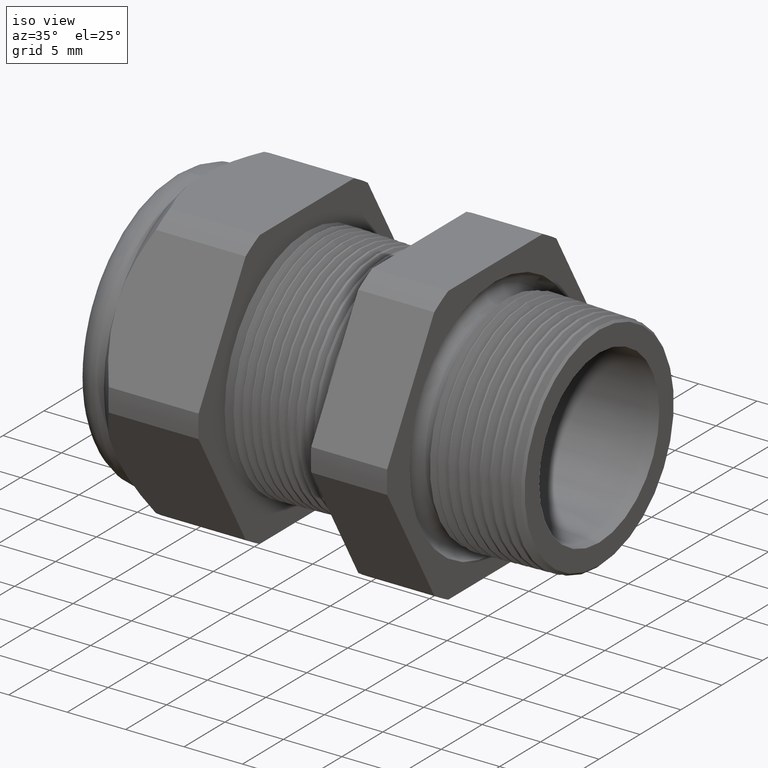
[diagram: clean part render]
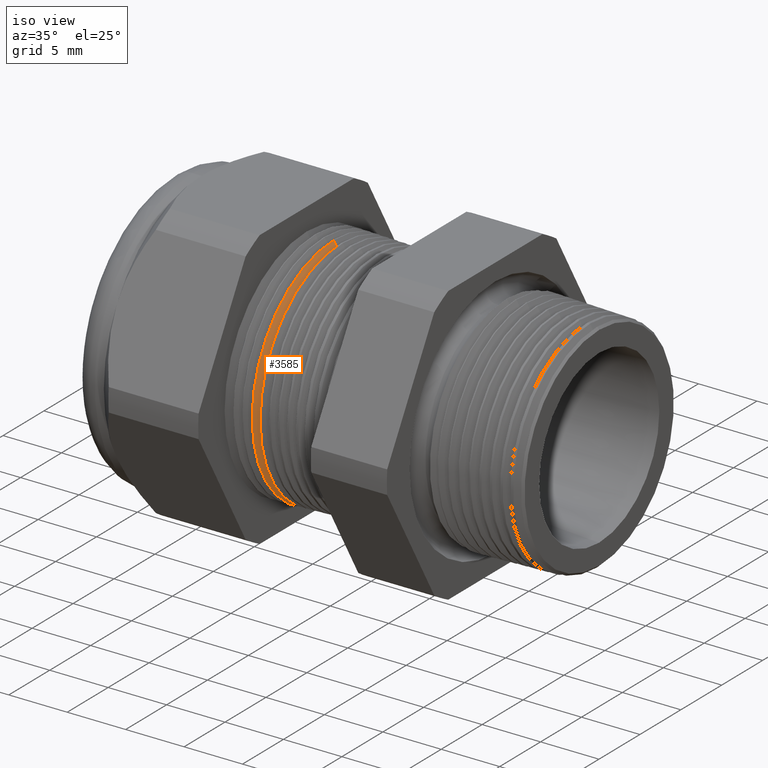
[diagram: same view with one face highlighted and labeled with its STEP entity id]
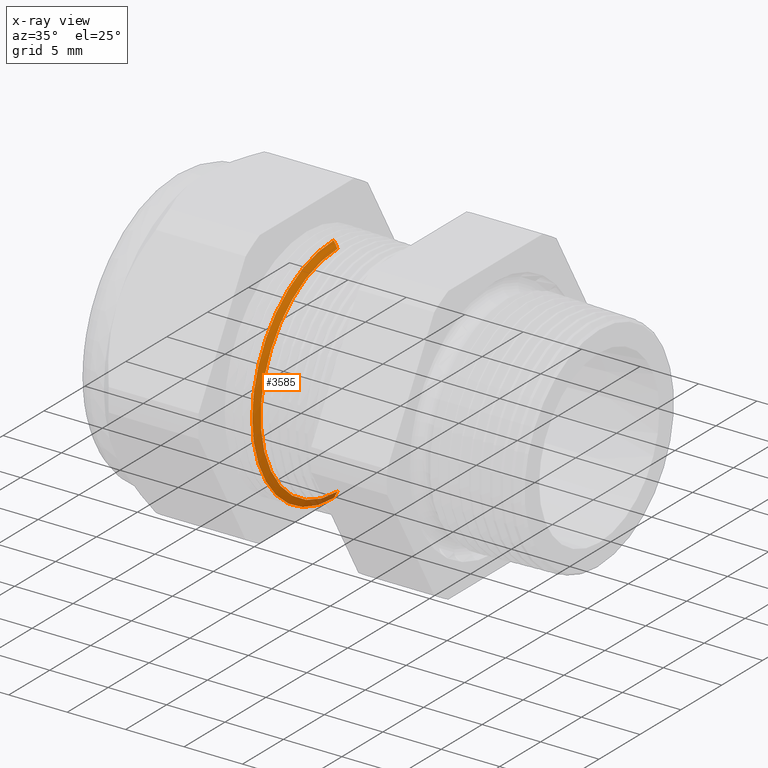
[diagram: x-ray of the same camera — body ghosted, the highlighted face saturated]
A machine part, iso view. The second image highlights one B-rep face of the part: STEP entity #3585.
The next image is the same camera in x-ray: the body ghosted, the highlighted face saturated — about 5% of this face is hidden behind the body in this view.
In plain terms, the highlighted conical surface has half-angle 61.5 deg.
Its self-contained STEP definition (entity closure, byte-faithful):
#487 = DIRECTION ( 'NONE',  ( 0.0000000000000000000, 0.0000000000000000000, 1.000000000000000000 ) ) ;
#488 = DIRECTION ( 'NONE',  ( 1.000000000000000000, 0.0000000000000000000, 0.0000000000000000000 ) ) ;
#489 = AXIS2_PLACEMENT_3D ( 'NONE', #496, #488, #487 ) ;
#490 = CIRCLE ( 'NONE', #489, 0.3926092762375419400 ) ;
#496 = CARTESIAN_POINT ( 'NONE',  ( -0.8541350137730544500, 0.0000000000000000000, 0.0000000000000000000 ) ) ;
#1541 = DIRECTION ( 'NONE',  ( 0.0000000000000000000, 0.0000000000000000000, -1.000000000000000000 ) ) ;
#1542 = DIRECTION ( 'NONE',  ( 1.000000000000000000, 0.0000000000000000000, 0.0000000000000000000 ) ) ;
#1543 = AXIS2_PLACEMENT_3D ( 'NONE', #1548, #1542, #1541 ) ;
#1544 = CIRCLE ( 'NONE', #1543, 0.3696307351718083300 ) ;
#1548 = CARTESIAN_POINT ( 'NONE',  ( -0.8416586839320380200, 0.0000000000000000000, 0.0000000000000000000 ) ) ;
#1581 = DIRECTION ( 'NONE',  ( 0.0000000000000000000, 0.0000000000000000000, 1.000000000000000000 ) ) ;
#1582 = DIRECTION ( 'NONE',  ( -1.000000000000000000, 0.0000000000000000000, 0.0000000000000000000 ) ) ;
#1583 = CARTESIAN_POINT ( 'NONE',  ( -0.8554330708661420600, 0.0000000000000000000, 0.0000000000000000000 ) ) ;
#1584 = AXIS2_PLACEMENT_3D ( 'NONE', #1583, #1582, #1581 ) ;
#1586 = CONICAL_SURFACE ( 'NONE', #1584, 0.3950000000000000200, 1.073377489976500500 ) ;
#1591 = FACE_OUTER_BOUND ( 'NONE', #3563, .T. ) ;
#2126 = VERTEX_POINT ( 'NONE', #3894 ) ;
#2129 = VERTEX_POINT ( 'NONE', #3892 ) ;
#2153 = EDGE_CURVE ( 'NONE', #2126, #2161, #3968, .T. ) ;
#2161 = VERTEX_POINT ( 'NONE', #4011 ) ;
#2169 = VERTEX_POINT ( 'NONE', #3996 ) ;
#2170 = EDGE_CURVE ( 'NONE', #2129, #2169, #3995, .T. ) ;
#2979 = EDGE_CURVE ( 'NONE', #2161, #2169, #490, .T. ) ;
#3563 = EDGE_LOOP ( 'NONE', ( #3564, #3565, #3567, #3568 ) ) ;
#3564 = ORIENTED_EDGE ( 'NONE', *, *, #2170, .F. ) ;
#3565 = ORIENTED_EDGE ( 'NONE', *, *, #3566, .F. ) ;
#3566 = EDGE_CURVE ( 'NONE', #2126, #2129, #1544, .T. ) ;
#3567 = ORIENTED_EDGE ( 'NONE', *, *, #2153, .T. ) ;
#3568 = ORIENTED_EDGE ( 'NONE', *, *, #2979, .T. ) ;
#3585 = ADVANCED_FACE ( 'NONE', ( #1591 ), #1586, .T. ) ;
#3892 = CARTESIAN_POINT ( 'NONE',  ( -0.8416586839320380200, 4.667373950772513900E-017, -0.3696307351718083300 ) ) ;
#3894 = CARTESIAN_POINT ( 'NONE',  ( -0.8416586839320380200, 0.0000000000000000000, 0.3696307351718083300 ) ) ;
#3965 = DIRECTION ( 'NONE',  ( -0.4771587602596191200, 0.0000000000000000000, 0.8788171126619595000 ) ) ;
#3966 = VECTOR ( 'NONE', #3965, 39.37007874015748100 ) ;
#3967 = CARTESIAN_POINT ( 'NONE',  ( -0.8554330708661420600, 0.0000000000000000000, 0.3950000000000000200 ) ) ;
#3968 = LINE ( 'NONE', #3967, #3966 ) ;
#3992 = DIRECTION ( 'NONE',  ( -0.4771587602596191200, 1.076240564057387800E-016, -0.8788171126619595000 ) ) ;
#3993 = VECTOR ( 'NONE', #3992, 39.37007874015748100 ) ;
#3994 = CARTESIAN_POINT ( 'NONE',  ( -0.8554330708661420600, 4.837354856632045600E-017, -0.3950000000000000200 ) ) ;
#3995 = LINE ( 'NONE', #3994, #3993 ) ;
#3996 = CARTESIAN_POINT ( 'NONE',  ( -0.8541350137730544500, 4.808620180705062400E-017, -0.3926092762375419400 ) ) ;
#4011 = CARTESIAN_POINT ( 'NONE',  ( -0.8541350137730544500, 0.0000000000000000000, 0.3926092762375419400 ) ) ;